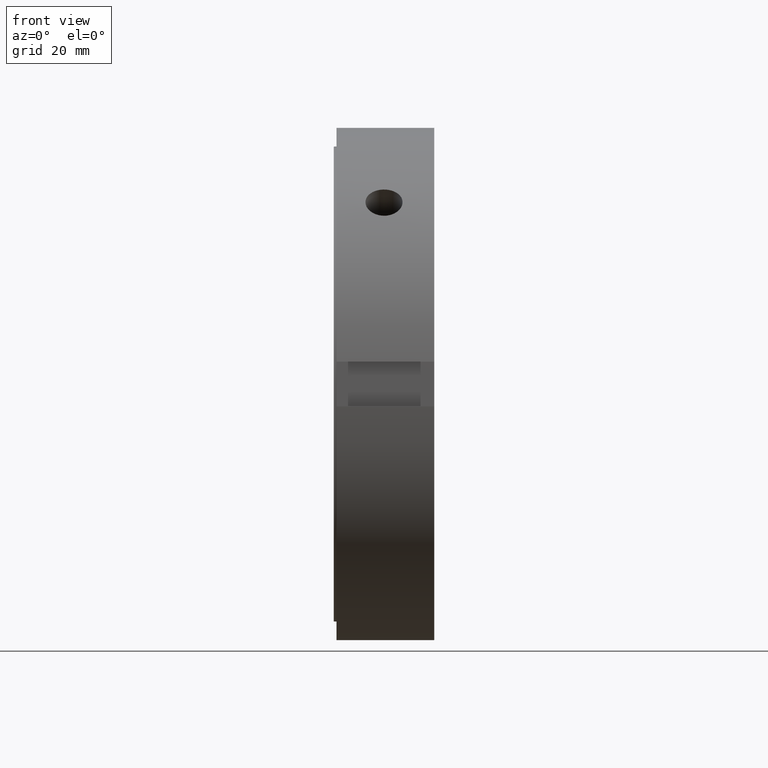
[diagram: clean part render]
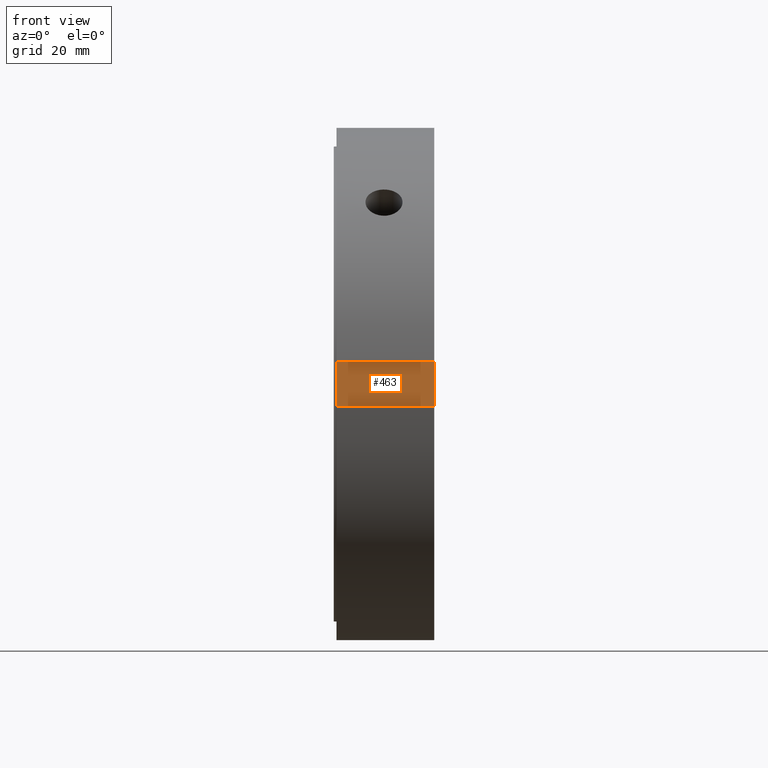
[diagram: same view with one face highlighted and labeled with its STEP entity id]
A machine part, front view. The second image highlights one B-rep face of the part: STEP entity #463.
In plain terms, the highlighted planar face has unit normal (0, 1, 0).
Its self-contained STEP definition (entity closure, byte-faithful):
#359=CARTESIAN_POINT('',(0.499999999999989,-42.500000000000000,4.000000000000004));
#360=VERTEX_POINT('',#359);
#369=CARTESIAN_POINT('',(17.999999999999993,-42.500000000000000,4.000000000000004));
#370=VERTEX_POINT('',#369);
#371=CARTESIAN_POINT('',(17.999999999999993,-42.500000000000000,4.000000000000004));
#372=DIRECTION('',(-1.0,0.0,0.0));
#373=VECTOR('',#372,17.500000000000004);
#374=LINE('',#371,#373);
#375=EDGE_CURVE('',#370,#360,#374,.T.);
#401=CARTESIAN_POINT('',(0.499999999999989,-42.500000000000000,-3.999999999999993));
#402=VERTEX_POINT('',#401);
#417=CARTESIAN_POINT('',(17.999999999999993,-42.500000000000000,-3.999999999999993));
#418=VERTEX_POINT('',#417);
#425=CARTESIAN_POINT('',(17.999999999999993,-42.500000000000000,-3.999999999999993));
#426=DIRECTION('',(-1.0,0.0,0.0));
#427=VECTOR('',#426,17.500000000000004);
#428=LINE('',#425,#427);
#429=EDGE_CURVE('',#418,#402,#428,.T.);
#434=CARTESIAN_POINT('',(17.999999999999993,-42.500000000000000,-3.999999999999993));
#435=DIRECTION('',(0.0,1.0,0.0));
#436=DIRECTION('',(0.0,0.0,1.0));
#437=AXIS2_PLACEMENT_3D('',#434,#435,#436);
#438=PLANE('',#437);
#439=CARTESIAN_POINT('',(0.499999999999989,-42.500000000000000,5.273559E-015));
#440=VERTEX_POINT('',#439);
#441=CARTESIAN_POINT('',(0.499999999999989,-42.500000000000000,-3.999999999999992));
#442=DIRECTION('',(0.0,0.0,1.0));
#443=VECTOR('',#442,3.999999999999997);
#444=LINE('',#441,#443);
#445=EDGE_CURVE('',#402,#440,#444,.T.);
#446=ORIENTED_EDGE('',*,*,#445,.F.);
#447=ORIENTED_EDGE('',*,*,#429,.F.);
#448=CARTESIAN_POINT('',(17.999999999999993,-42.500000000000000,4.000000000000004));
#449=DIRECTION('',(0.0,0.0,-1.0));
#450=VECTOR('',#449,7.999999999999996);
#451=LINE('',#448,#450);
#452=EDGE_CURVE('',#370,#418,#451,.T.);
#453=ORIENTED_EDGE('',*,*,#452,.F.);
#454=ORIENTED_EDGE('',*,*,#375,.T.);
#455=CARTESIAN_POINT('',(0.499999999999989,-42.500000000000000,5.329071E-015));
#456=DIRECTION('',(0.0,0.0,1.0));
#457=VECTOR('',#456,3.999999999999998);
#458=LINE('',#455,#457);
#459=EDGE_CURVE('',#440,#360,#458,.T.);
#460=ORIENTED_EDGE('',*,*,#459,.F.);
#461=EDGE_LOOP('',(#446,#447,#453,#454,#460));
#462=FACE_OUTER_BOUND('',#461,.T.);
#463=ADVANCED_FACE('',(#462),#438,.F.);